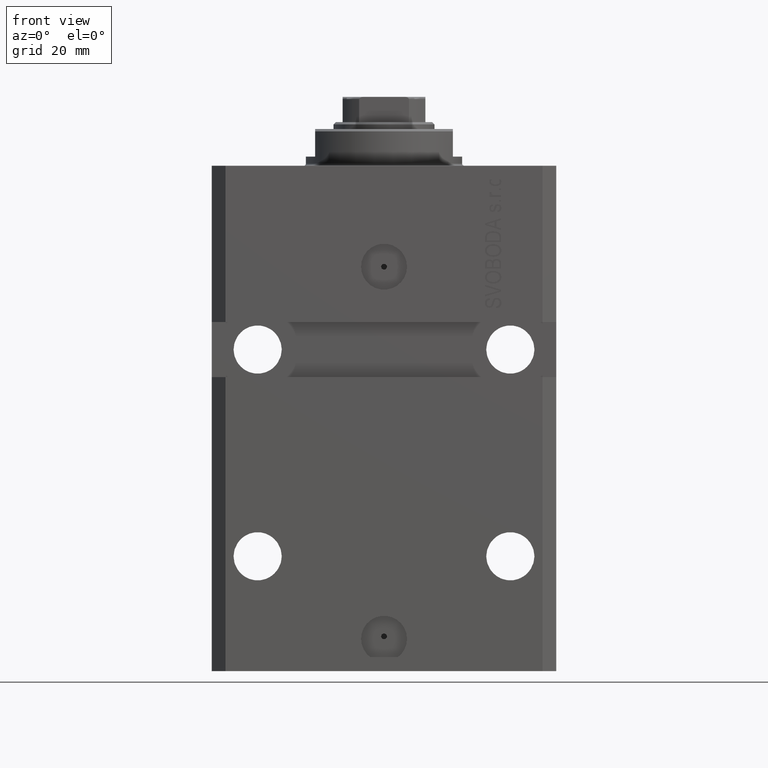
[diagram: clean part render]
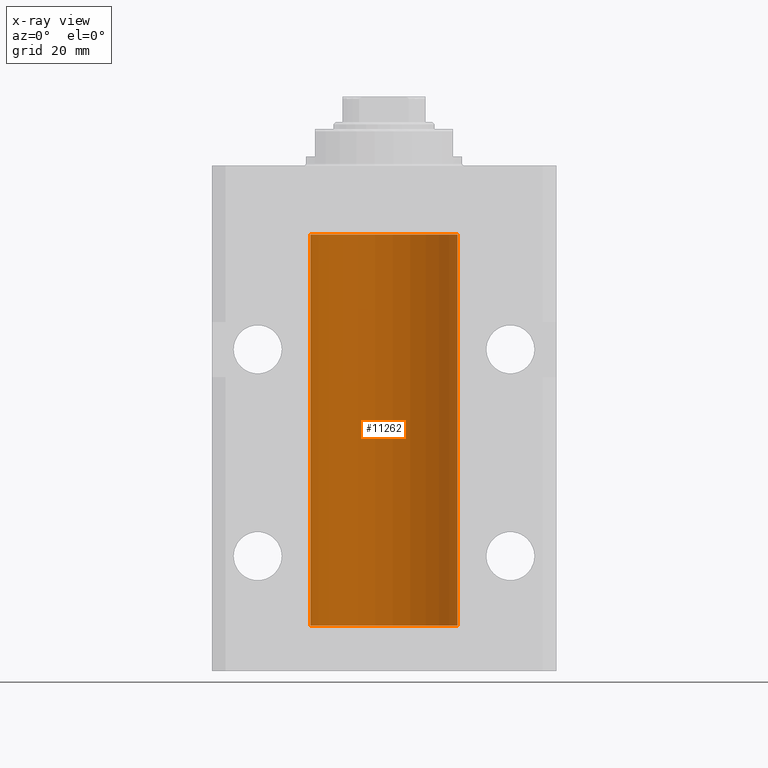
[diagram: x-ray — body ghosted, one internal face saturated and labeled with its STEP entity id]
A machine part, front view, then the same camera in x-ray: the body is ghosted and one INTERNAL B-rep face — a face not visible from any outside direction — is saturated and labeled: STEP entity #11262.
In plain terms, the highlighted cylindrical surface (partial cylindrical patch) has radius 16 mm, axis along (0, 0, 1).
Its self-contained STEP definition (entity closure, byte-faithful):
#110 = ORIENTED_EDGE ( 'NONE', *, *, #40868, .F. ) ;
#153 = LINE ( 'NONE', #3976, #34713 ) ;
#773 = AXIS2_PLACEMENT_3D ( 'NONE', #6878, #43503, #7350 ) ;
#985 = CARTESIAN_POINT ( 'NONE',  ( 16.00000000000000000, 0.000000000000000000, -100.0999999999999943 ) ) ;
#1430 = CARTESIAN_POINT ( 'NONE',  ( 0.000000000000000000, 0.000000000000000000, -100.0999999999999943 ) ) ;
#1794 = VECTOR ( 'NONE', #27302, 1000.000000000000000 ) ;
#2092 = DIRECTION ( 'NONE',  ( 1.000000000000000000, 0.000000000000000000, 0.000000000000000000 ) ) ;
#2695 = CARTESIAN_POINT ( 'NONE',  ( -16.00000000000000000, 1.959434878635765131E-15, -15.00000000000000000 ) ) ;
#2871 = VERTEX_POINT ( 'NONE', #24640 ) ;
#3678 = CARTESIAN_POINT ( 'NONE',  ( -15.99707730059171240, 0.3150375992092407373, -21.45402333202571654 ) ) ;
#3976 = CARTESIAN_POINT ( 'NONE',  ( -16.00000000000000000, 1.959434878635765131E-15, -100.0999999999999943 ) ) ;
#6406 = CARTESIAN_POINT ( 'NONE',  ( -15.99711699979841661, 0.3253759916140614439, -98.55856151623174810 ) ) ;
#6543 = CIRCLE ( 'NONE', #9604, 16.00000000000000000 ) ;
#6800 = CARTESIAN_POINT ( 'NONE',  ( -15.99070426498503217, 0.5462220647145618058, -22.31460064614143590 ) ) ;
#6878 = CARTESIAN_POINT ( 'NONE',  ( 0.000000000000000000, 0.000000000000000000, -15.00000000000000000 ) ) ;
#7350 = DIRECTION ( 'NONE',  ( 1.000000000000000000, 0.000000000000000000, 0.000000000000000000 ) ) ;
#7421 = VECTOR ( 'NONE', #9627, 1000.000000000000000 ) ;
#7773 = ORIENTED_EDGE ( 'NONE', *, *, #33876, .T. ) ;
#8277 = DIRECTION ( 'NONE',  ( -0.000000000000000000, -0.000000000000000000, 1.000000000000000000 ) ) ;
#9075 = ORIENTED_EDGE ( 'NONE', *, *, #32337, .T. ) ;
#9148 = CARTESIAN_POINT ( 'NONE',  ( -16.00000000000000000, 1.959434878635765131E-15, -100.0999999999999943 ) ) ;
#9401 = B_SPLINE_CURVE_WITH_KNOTS ( 'NONE', 3,
 ( #20540, #35128, #31538, #46151, #13352, #13598, #27957, #24597, #42549, #24373, #38954, #6406, #17427, #24835 ),
 .UNSPECIFIED., .F., .F.,
 ( 4, 2, 2, 2, 2, 2, 4 ),
 ( 1.003919637555167698E-18, 0.0002442776652680894158, 0.0004885553305361776391, 0.0009771106610723541940, 0.001221388326340463017, 0.001465665991608572274, 0.001954221322144760863 ),
 .UNSPECIFIED. ) ;
#9604 = AXIS2_PLACEMENT_3D ( 'NONE', #1430, #23003, #41404 ) ;
#9627 = DIRECTION ( 'NONE',  ( -0.000000000000000000, -0.000000000000000000, 1.000000000000000000 ) ) ;
#9914 = CARTESIAN_POINT ( 'NONE',  ( -15.98778717651346071, 0.6250289588122140971, -22.08131585687052478 ) ) ;
#10127 = EDGE_CURVE ( 'NONE', #34335, #44492, #16290, .T. ) ;
#10211 = CARTESIAN_POINT ( 'NONE',  ( 16.00000000000000000, 0.000000000000000000, -15.00000000000000000 ) ) ;
#10548 = EDGE_CURVE ( 'NONE', #19504, #18839, #153, .T. ) ;
#11262 = ADVANCED_FACE ( 'NONE', ( #45674 ), #23662, .F. ) ;
#12692 = CARTESIAN_POINT ( 'NONE',  ( -16.00000000000000000, 1.959434878635765131E-15, -100.0999999999999943 ) ) ;
#13352 = CARTESIAN_POINT ( 'NONE',  ( -15.99548640841682712, 0.3843705577988784650, -97.50046628527007897 ) ) ;
#13598 = CARTESIAN_POINT ( 'NONE',  ( -15.99070653155267685, 0.5573233280232928744, -97.67348148680505915 ) ) ;
#13992 = CARTESIAN_POINT ( 'NONE',  ( -16.00000000000000000, 1.643679961284177128E-16, -21.37499999999999645 ) ) ;
#14476 = CARTESIAN_POINT ( 'NONE',  ( -15.98844267028591482, 0.6088369347963316081, -22.16324735024328518 ) ) ;
#15508 = VERTEX_POINT ( 'NONE', #10211 ) ;
#16290 = LINE ( 'NONE', #12692, #1794 ) ;
#16350 = ORIENTED_EDGE ( 'NONE', *, *, #43653, .F. ) ;
#17427 = CARTESIAN_POINT ( 'NONE',  ( -15.99999999999998934, 0.1631714642025804407, -98.62499999999987210 ) ) ;
#18839 = VERTEX_POINT ( 'NONE', #37684 ) ;
#19504 = VERTEX_POINT ( 'NONE', #23222 ) ;
#20300 = CARTESIAN_POINT ( 'NONE',  ( 0.000000000000000000, 0.000000000000000000, -100.0999999999999943 ) ) ;
#20540 = CARTESIAN_POINT ( 'NONE',  ( -16.00000000000000000, -1.303459030566954747E-14, -97.37500000000000000 ) ) ;
#21079 = ORIENTED_EDGE ( 'NONE', *, *, #10548, .F. ) ;
#21181 = CARTESIAN_POINT ( 'NONE',  ( -16.00000000000000000, 0.1631714642025800244, -22.62499999999985789 ) ) ;
#22608 = ORIENTED_EDGE ( 'NONE', *, *, #34767, .T. ) ;
#22748 = ORIENTED_EDGE ( 'NONE', *, *, #27882, .T. ) ;
#23003 = DIRECTION ( 'NONE',  ( 0.000000000000000000, 0.000000000000000000, 1.000000000000000000 ) ) ;
#23067 = EDGE_LOOP ( 'NONE', ( #16350, #110, #7773, #22748, #30967, #22608, #21079, #9075 ) ) ;
#23222 = CARTESIAN_POINT ( 'NONE',  ( -16.00000000000000000, -1.303459030566954747E-14, -97.37500000000000000 ) ) ;
#23662 = CYLINDRICAL_SURFACE ( 'NONE', #40826, 16.00000000000000000 ) ;
#24373 = CARTESIAN_POINT ( 'NONE',  ( -15.99070426498503572, 0.5462220647145610286, -98.31460064614144301 ) ) ;
#24597 = CARTESIAN_POINT ( 'NONE',  ( -15.98778717651346604, 0.6250289588122097673, -98.08131585687051768 ) ) ;
#24640 = CARTESIAN_POINT ( 'NONE',  ( 16.00000000000000000, 0.000000000000000000, -100.0999999999999943 ) ) ;
#24835 = CARTESIAN_POINT ( 'NONE',  ( -16.00000000000013145, 3.685127046438747128E-13, -98.62500000000343903 ) ) ;
#25258 = CIRCLE ( 'NONE', #773, 16.00000000000000000 ) ;
#26766 = CARTESIAN_POINT ( 'NONE',  ( -16.00000000000000000, 1.959434878635765131E-15, -100.0999999999999943 ) ) ;
#26937 = VECTOR ( 'NONE', #44802, 1000.000000000000000 ) ;
#27302 = DIRECTION ( 'NONE',  ( -0.000000000000000000, -0.000000000000000000, 1.000000000000000000 ) ) ;
#27882 = EDGE_CURVE ( 'NONE', #15508, #44492, #25258, .T. ) ;
#27957 = CARTESIAN_POINT ( 'NONE',  ( -15.98779057735153941, 0.6249419637998017141, -97.83670145863504786 ) ) ;
#28599 = CARTESIAN_POINT ( 'NONE',  ( -15.98779057735153941, 0.6249419637998100407, -21.83670145863507273 ) ) ;
#29068 = CARTESIAN_POINT ( 'NONE',  ( -15.99711699979842017, 0.3253759916140657737, -22.55856151623175521 ) ) ;
#30683 = VERTEX_POINT ( 'NONE', #31137 ) ;
#30967 = ORIENTED_EDGE ( 'NONE', *, *, #10127, .F. ) ;
#31137 = CARTESIAN_POINT ( 'NONE',  ( -16.00000000000013145, 3.685127046438747128E-13, -98.62500000000343903 ) ) ;
#31538 = CARTESIAN_POINT ( 'NONE',  ( -15.99934216141748244, 0.1636497843296308152, -97.39126528029306940 ) ) ;
#31951 = CARTESIAN_POINT ( 'NONE',  ( -16.00000000000000711, 0.08259886010189904093, -21.37500000000000000 ) ) ;
#32337 = EDGE_CURVE ( 'NONE', #19504, #30683, #9401, .T. ) ;
#32405 = CARTESIAN_POINT ( 'NONE',  ( -15.99228023727724413, 0.5003781296993413674, -22.38347829554236057 ) ) ;
#32644 = CARTESIAN_POINT ( 'NONE',  ( -15.99070653155267685, 0.5573233280232986475, -21.67348148680506625 ) ) ;
#33876 = EDGE_CURVE ( 'NONE', #2871, #15508, #37853, .T. ) ;
#34335 = VERTEX_POINT ( 'NONE', #38695 ) ;
#34713 = VECTOR ( 'NONE', #8277, 1000.000000000000000 ) ;
#34767 = EDGE_CURVE ( 'NONE', #34335, #18839, #34915, .T. ) ;
#34885 = DIRECTION ( 'NONE',  ( -0.000000000000000000, -0.000000000000000000, 1.000000000000000000 ) ) ;
#34915 = B_SPLINE_CURVE_WITH_KNOTS ( 'NONE', 3,
 ( #13992, #31951, #47262, #3678, #36004, #32644, #28599, #9914, #14476, #6800, #32405, #29068, #21181, #43648 ),
 .UNSPECIFIED., .F., .F.,
 ( 4, 2, 2, 2, 2, 2, 4 ),
 ( 1.597328219370744179E-19, 0.0002442776652680942405, 0.0004885553305361882643, 0.0009771106610723839011, 0.001221388326340481665, 0.001465665991608579430, 0.001954221322144767369 ),
 .UNSPECIFIED. ) ;
#35128 = CARTESIAN_POINT ( 'NONE',  ( -16.00000000000000711, 0.08259886010188650929, -97.37500000000000000 ) ) ;
#36004 = CARTESIAN_POINT ( 'NONE',  ( -15.99548640841683067, 0.3843705577988847377, -21.50046628527008608 ) ) ;
#37684 = CARTESIAN_POINT ( 'NONE',  ( -16.00000000000013145, 3.685127038166941002E-13, -22.62500000000341771 ) ) ;
#37853 = LINE ( 'NONE', #985, #26937 ) ;
#38695 = CARTESIAN_POINT ( 'NONE',  ( -16.00000000000000000, 1.643679961284177128E-16, -21.37499999999999645 ) ) ;
#38954 = CARTESIAN_POINT ( 'NONE',  ( -15.99228023727724057, 0.5003781296993360383, -98.38347829554236057 ) ) ;
#40321 = VERTEX_POINT ( 'NONE', #26766 ) ;
#40826 = AXIS2_PLACEMENT_3D ( 'NONE', #20300, #34885, #2092 ) ;
#40868 = EDGE_CURVE ( 'NONE', #2871, #40321, #6543, .T. ) ;
#41404 = DIRECTION ( 'NONE',  ( 1.000000000000000000, 0.000000000000000000, 0.000000000000000000 ) ) ;
#42549 = CARTESIAN_POINT ( 'NONE',  ( -15.98844267028590949, 0.6088369347963275002, -98.16324735024325321 ) ) ;
#43503 = DIRECTION ( 'NONE',  ( 0.000000000000000000, 0.000000000000000000, 1.000000000000000000 ) ) ;
#43648 = CARTESIAN_POINT ( 'NONE',  ( -16.00000000000013145, 3.685127038166941002E-13, -22.62500000000341771 ) ) ;
#43653 = EDGE_CURVE ( 'NONE', #40321, #30683, #46270, .T. ) ;
#44492 = VERTEX_POINT ( 'NONE', #2695 ) ;
#44802 = DIRECTION ( 'NONE',  ( -0.000000000000000000, -0.000000000000000000, 1.000000000000000000 ) ) ;
#45674 = FACE_OUTER_BOUND ( 'NONE', #23067, .T. ) ;
#46151 = CARTESIAN_POINT ( 'NONE',  ( -15.99707730059171240, 0.3150375992092294686, -97.45402333202572720 ) ) ;
#46270 = LINE ( 'NONE', #9148, #7421 ) ;
#47262 = CARTESIAN_POINT ( 'NONE',  ( -15.99934216141748244, 0.1636497843296417787, -21.39126528029306229 ) ) ;